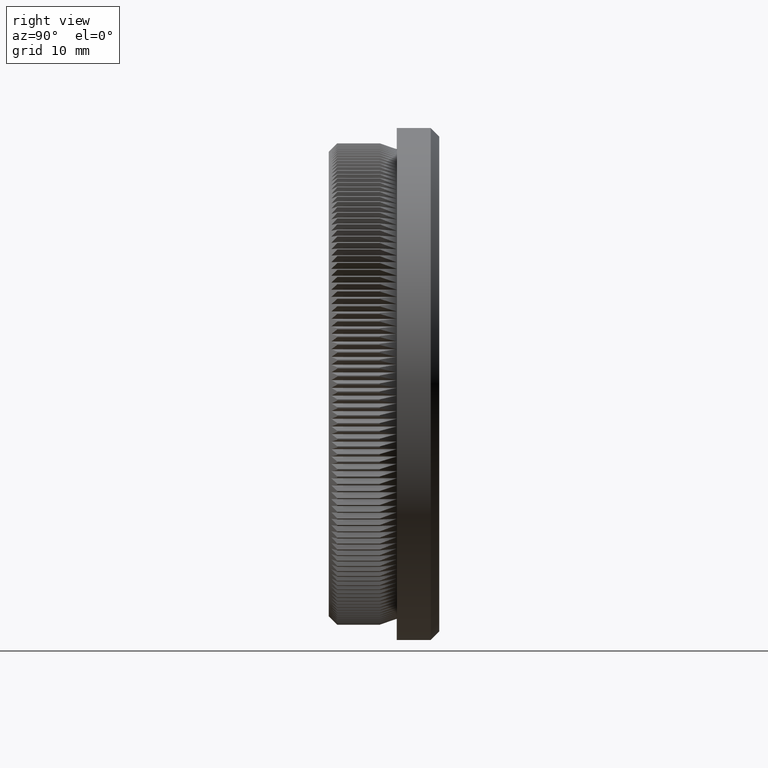
[diagram: clean part render]
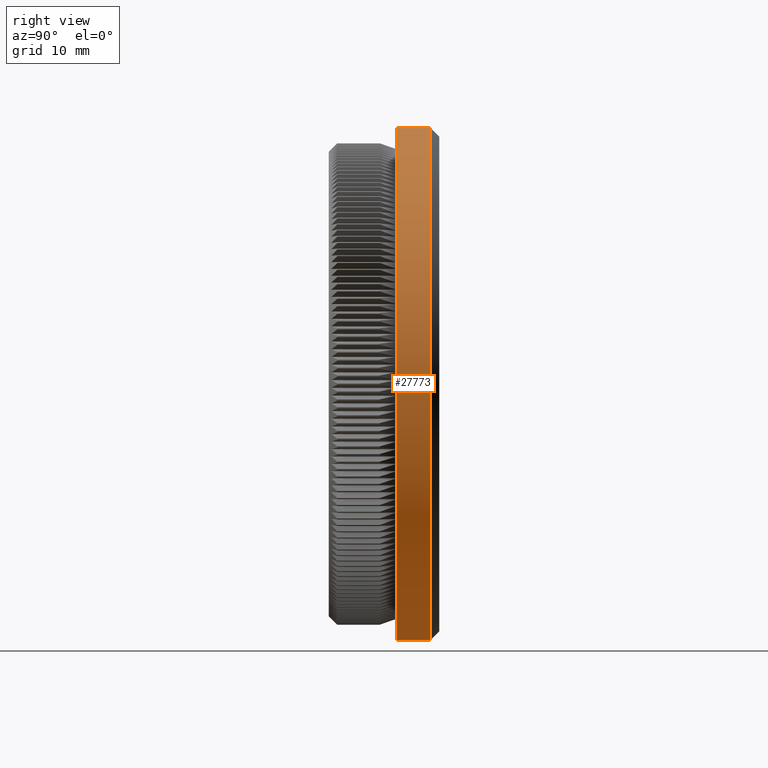
[diagram: same view with one face highlighted and labeled with its STEP entity id]
A machine part, right view. The second image highlights one B-rep face of the part: STEP entity #27773.
In plain terms, the highlighted cylindrical surface (partial cylindrical patch) has radius 30.15 mm, axis along (-0, -1, -0).
Its self-contained STEP definition (entity closure, byte-faithful):
#1677 = DIRECTION ( 'NONE',  ( 0.0000000000000000000, 0.0000000000000000000, -1.000000000000000000 ) ) ;
#2368 = FACE_OUTER_BOUND ( 'NONE', #7043, .T. ) ;
#6283 = AXIS2_PLACEMENT_3D ( 'NONE', #14591, #31744, #20055 ) ;
#7043 = EDGE_LOOP ( 'NONE', ( #9843, #16235, #36244, #8812 ) ) ;
#8812 = ORIENTED_EDGE ( 'NONE', *, *, #20116, .F. ) ;
#9440 = DIRECTION ( 'NONE',  ( 0.0000000000000000000, 0.0000000000000000000, 1.000000000000000000 ) ) ;
#9843 = ORIENTED_EDGE ( 'NONE', *, *, #25040, .T. ) ;
#12085 = CARTESIAN_POINT ( 'NONE',  ( 3.692310099429268800E-015, 8.000000000000000000, 30.14999999999999100 ) ) ;
#13748 = VECTOR ( 'NONE', #25302, 1000.000000000000000 ) ;
#14591 = CARTESIAN_POINT ( 'NONE',  ( 0.0000000000000000000, 8.000000000000000000, 0.0000000000000000000 ) ) ;
#14859 = AXIS2_PLACEMENT_3D ( 'NONE', #36885, #19133, #1677 ) ;
#15603 = CIRCLE ( 'NONE', #6283, 30.14999999999999100 ) ;
#16059 = DIRECTION ( 'NONE',  ( -0.0000000000000000000, -1.000000000000000000, -0.0000000000000000000 ) ) ;
#16091 = CARTESIAN_POINT ( 'NONE',  ( 0.0000000000000000000, 8.000000000000000000, -30.14999999999999100 ) ) ;
#16235 = ORIENTED_EDGE ( 'NONE', *, *, #34557, .T. ) ;
#17309 = VECTOR ( 'NONE', #16059, 1000.000000000000000 ) ;
#18263 = DIRECTION ( 'NONE',  ( -0.0000000000000000000, -1.000000000000000000, -0.0000000000000000000 ) ) ;
#19133 = DIRECTION ( 'NONE',  ( -0.0000000000000000000, -1.000000000000000000, -0.0000000000000000000 ) ) ;
#19134 = LINE ( 'NONE', #24692, #17309 ) ;
#19219 = LINE ( 'NONE', #31016, #13748 ) ;
#19908 = CARTESIAN_POINT ( 'NONE',  ( 3.692310099429269600E-015, 11.99999999999998800, 30.14999999999999500 ) ) ;
#20055 = DIRECTION ( 'NONE',  ( 0.0000000000000000000, 0.0000000000000000000, -1.000000000000000000 ) ) ;
#20116 = EDGE_CURVE ( 'NONE', #37366, #21407, #19134, .T. ) ;
#21407 = VERTEX_POINT ( 'NONE', #16091 ) ;
#21635 = VERTEX_POINT ( 'NONE', #19908 ) ;
#24214 = CARTESIAN_POINT ( 'NONE',  ( 0.0000000000000000000, 11.99999999999998800, 0.0000000000000000000 ) ) ;
#24692 = CARTESIAN_POINT ( 'NONE',  ( 0.0000000000000000000, 0.0000000000000000000, -30.14999999999999500 ) ) ;
#25040 = EDGE_CURVE ( 'NONE', #37366, #21635, #31212, .T. ) ;
#25302 = DIRECTION ( 'NONE',  ( -0.0000000000000000000, -1.000000000000000000, -0.0000000000000000000 ) ) ;
#26069 = CYLINDRICAL_SURFACE ( 'NONE', #14859, 30.14999999999999500 ) ;
#27773 = ADVANCED_FACE ( 'NONE', ( #2368 ), #26069, .T. ) ;
#28029 = EDGE_CURVE ( 'NONE', #21407, #32204, #15603, .T. ) ;
#28528 = CARTESIAN_POINT ( 'NONE',  ( 0.0000000000000000000, 11.99999999999998800, -30.14999999999999500 ) ) ;
#31016 = CARTESIAN_POINT ( 'NONE',  ( 3.692310099429269600E-015, 0.0000000000000000000, 30.14999999999999500 ) ) ;
#31212 = CIRCLE ( 'NONE', #33551, 30.14999999999999500 ) ;
#31744 = DIRECTION ( 'NONE',  ( -0.0000000000000000000, -1.000000000000000000, -0.0000000000000000000 ) ) ;
#32204 = VERTEX_POINT ( 'NONE', #12085 ) ;
#33551 = AXIS2_PLACEMENT_3D ( 'NONE', #24214, #18263, #9440 ) ;
#34557 = EDGE_CURVE ( 'NONE', #21635, #32204, #19219, .T. ) ;
#36244 = ORIENTED_EDGE ( 'NONE', *, *, #28029, .F. ) ;
#36885 = CARTESIAN_POINT ( 'NONE',  ( 0.0000000000000000000, 0.0000000000000000000, 0.0000000000000000000 ) ) ;
#37366 = VERTEX_POINT ( 'NONE', #28528 ) ;